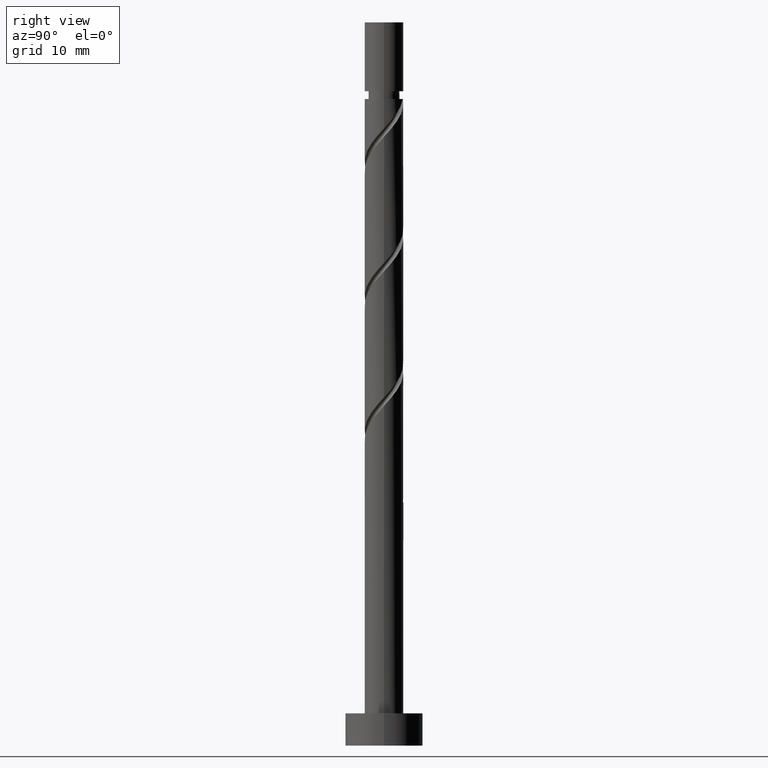
[diagram: clean part render]
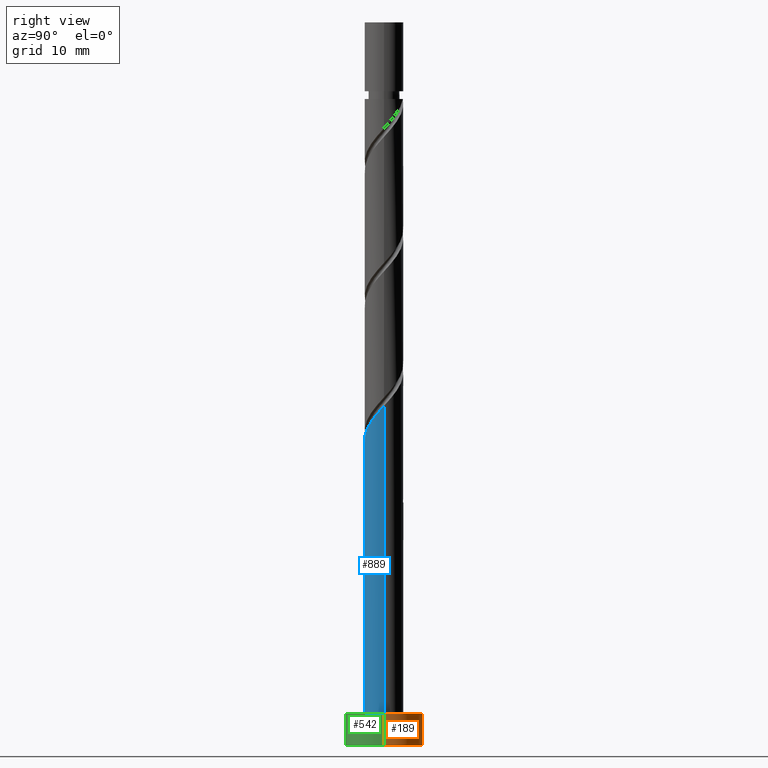
[diagram: same view with three faces highlighted in distinct colors, each labeled with its STEP entity id]
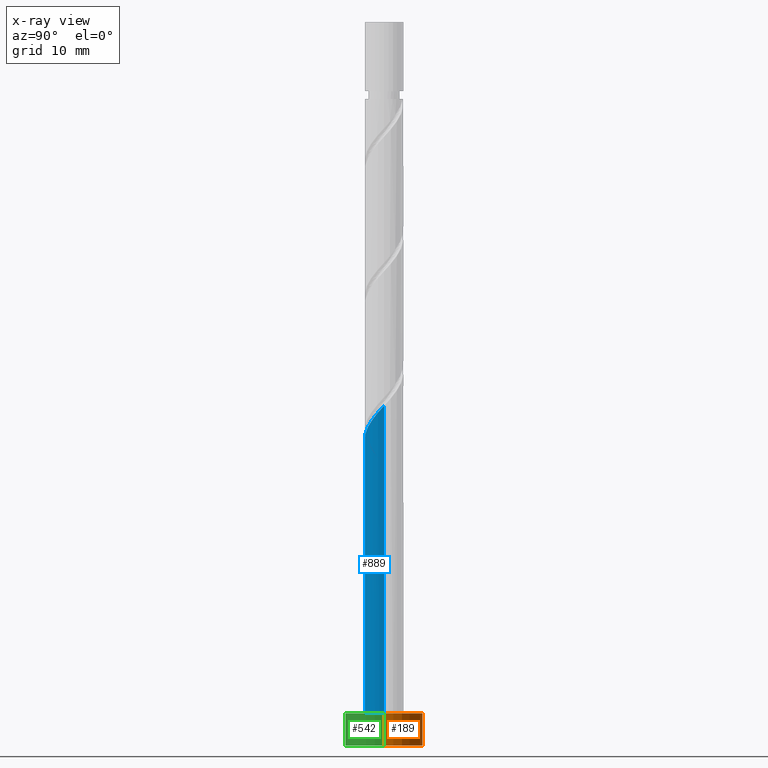
[diagram: x-ray of the same camera — body ghosted, the three highlighted faces saturated]
A machine part, right view with three faces highlighted in distinct colors.
The next image is the same camera in x-ray (body ghosted, the three faces saturated) — at least one of them is partly hidden behind the body in this view.
Their STEP definitions:

[orange] entity #189 — the highlighted cylindrical surface (partial cylindrical patch) has radius 6 mm, axis along (-0, -0, -1).
#1 = ORIENTED_EDGE ( 'NONE', *, *, #1393, .T. ) ;
#32 = VERTEX_POINT ( 'NONE', #454 ) ;
#46 = ORIENTED_EDGE ( 'NONE', *, *, #1439, .T. ) ;
#57 = ORIENTED_EDGE ( 'NONE', *, *, #138, .F. ) ;
#138 = EDGE_CURVE ( 'NONE', #298, #1461, #336, .T. ) ;
#189 = ADVANCED_FACE ( 'NONE', ( #222 ), #1161, .T. ) ;
#222 = FACE_OUTER_BOUND ( 'NONE', #672, .T. ) ;
#281 = AXIS2_PLACEMENT_3D ( 'NONE', #1183, #569, #560 ) ;
#298 = VERTEX_POINT ( 'NONE', #687 ) ;
#306 = VECTOR ( 'NONE', #623, 1000.000000000000000 ) ;
#336 = LINE ( 'NONE', #943, #1539 ) ;
#338 = ORIENTED_EDGE ( 'NONE', *, *, #1012, .F. ) ;
#409 = VERTEX_POINT ( 'NONE', #605 ) ;
#434 = CARTESIAN_POINT ( 'NONE',  ( 0.000000000000000000, 0.000000000000000000, 5.000000000000000000 ) ) ;
#454 = CARTESIAN_POINT ( 'NONE',  ( 6.000000000000000888, 7.347880794884120722E-16, 0.000000000000000000 ) ) ;
#502 = LINE ( 'NONE', #1118, #306 ) ;
#560 = DIRECTION ( 'NONE',  ( 1.000000000000000000, 0.000000000000000000, 0.000000000000000000 ) ) ;
#569 = DIRECTION ( 'NONE',  ( 0.000000000000000000, 0.000000000000000000, 1.000000000000000000 ) ) ;
#605 = CARTESIAN_POINT ( 'NONE',  ( 6.000000000000000888, 7.347880794884120722E-16, 5.000000000000000000 ) ) ;
#623 = DIRECTION ( 'NONE',  ( -0.000000000000000000, -0.000000000000000000, -1.000000000000000000 ) ) ;
#672 = EDGE_LOOP ( 'NONE', ( #338, #46, #1, #57 ) ) ;
#687 = CARTESIAN_POINT ( 'NONE',  ( -6.000000000000000888, 0.000000000000000000, 5.000000000000000000 ) ) ;
#724 = DIRECTION ( 'NONE',  ( 0.000000000000000000, 0.000000000000000000, 1.000000000000000000 ) ) ;
#918 = DIRECTION ( 'NONE',  ( -0.000000000000000000, -0.000000000000000000, -1.000000000000000000 ) ) ;
#943 = CARTESIAN_POINT ( 'NONE',  ( -6.000000000000000888, 0.000000000000000000, 5.000000000000000000 ) ) ;
#995 = DIRECTION ( 'NONE',  ( 1.000000000000000000, 0.000000000000000000, 0.000000000000000000 ) ) ;
#1012 = EDGE_CURVE ( 'NONE', #409, #298, #1313, .T. ) ;
#1111 = CARTESIAN_POINT ( 'NONE',  ( 0.000000000000000000, 0.000000000000000000, 0.000000000000000000 ) ) ;
#1118 = CARTESIAN_POINT ( 'NONE',  ( 6.000000000000000888, 7.347880794884120722E-16, 5.000000000000000000 ) ) ;
#1161 = CYLINDRICAL_SURFACE ( 'NONE', #1177, 6.000000000000000888 ) ;
#1177 = AXIS2_PLACEMENT_3D ( 'NONE', #434, #918, #1428 ) ;
#1183 = CARTESIAN_POINT ( 'NONE',  ( 0.000000000000000000, 0.000000000000000000, 5.000000000000000000 ) ) ;
#1240 = CIRCLE ( 'NONE', #1438, 6.000000000000000888 ) ;
#1313 = CIRCLE ( 'NONE', #281, 6.000000000000000888 ) ;
#1393 = EDGE_CURVE ( 'NONE', #32, #1461, #1240, .T. ) ;
#1428 = DIRECTION ( 'NONE',  ( -1.000000000000000000, 0.000000000000000000, 0.000000000000000000 ) ) ;
#1438 = AXIS2_PLACEMENT_3D ( 'NONE', #1111, #724, #995 ) ;
#1439 = EDGE_CURVE ( 'NONE', #409, #32, #502, .T. ) ;
#1445 = DIRECTION ( 'NONE',  ( -0.000000000000000000, -0.000000000000000000, -1.000000000000000000 ) ) ;
#1461 = VERTEX_POINT ( 'NONE', #1484 ) ;
#1484 = CARTESIAN_POINT ( 'NONE',  ( -6.000000000000000888, 0.000000000000000000, 0.000000000000000000 ) ) ;
#1539 = VECTOR ( 'NONE', #1445, 1000.000000000000000 ) ;

[blue] entity #889 — the highlighted cylindrical surface (edge-blend (fillet) strip) has radius 3 mm, axis along (-0, -0, -1).
#39 = VERTEX_POINT ( 'NONE', #1192 ) ;
#41 =( BOUNDED_CURVE ( )  B_SPLINE_CURVE ( 2, ( #594, #1363, #508, #730, #637, #1221, #1110, #748, #1241, #1519, #904, #760, #1152, #531, #163, #1013, #1006, #1396, #1383, #781, #1140, #399, #541 ),
 .UNSPECIFIED., .F., .T. ) 
 B_SPLINE_CURVE_WITH_KNOTS ( ( 3, 2, 2, 2, 2, 2, 2, 2, 2, 2, 2, 3 ),
 ( 0.05453220231385524225, 0.06250000000000000000, 0.07499999999999995559, 0.08750000000000002220, 0.09999999999999997780, 0.1125000000000000444, 0.1250000000000000000, 0.1374999999999999556, 0.1500000000000000222, 0.1624999999999999778, 0.1750000000000000444, 0.1795322023138552214 ),
 .UNSPECIFIED. ) 
 CURVE ( )  GEOMETRIC_REPRESENTATION_ITEM ( )  RATIONAL_B_SPLINE_CURVE ( ( 0.9039174447099386223, 0.9019565955404678093, 0.9090909090909161661, 0.8978984914501322301, 0.9090909090909161661, 0.8978984914501322301, 0.9090909090909161661, 0.8978984914501322301, 0.9090909090909161661, 0.8978984914501322301, 0.9090909090909161661, 0.8978984914501322301, 0.9090909090909161661, 0.8978984914501322301, 0.9090909090909161661, 0.8978984914501322301, 0.9090909090909161661, 0.8978984914501322301, 0.9090909090909161661, 0.8978984914501322301, 0.9090909090909161661, 0.9050328050005804759, 0.9039174447099382892 ) ) 
 REPRESENTATION_ITEM ( '' )  );
#61 = AXIS2_PLACEMENT_3D ( 'NONE', #651, #974, #1136 ) ;
#105 = DIRECTION ( 'NONE',  ( -0.000000000000000000, -0.000000000000000000, -1.000000000000000000 ) ) ;
#163 = CARTESIAN_POINT ( 'NONE',  ( 1.476283534877584902, -2.611625341554446145, 49.10233916454514258 ) ) ;
#188 = FACE_OUTER_BOUND ( 'NONE', #1333, .T. ) ;
#230 = CYLINDRICAL_SURFACE ( 'NONE', #1156, 3.000000000000000444 ) ;
#241 = LINE ( 'NONE', #977, #492 ) ;
#254 = VERTEX_POINT ( 'NONE', #806 ) ;
#370 = DIRECTION ( 'NONE',  ( -0.000000000000000000, -0.000000000000000000, -1.000000000000000000 ) ) ;
#379 = EDGE_CURVE ( 'NONE', #254, #1340, #241, .T. ) ;
#399 = CARTESIAN_POINT ( 'NONE',  ( 3.000000000000005773, -0.1709212123393008820, 52.41469230053426287 ) ) ;
#427 = ORIENTED_EDGE ( 'NONE', *, *, #597, .T. ) ;
#490 = CARTESIAN_POINT ( 'NONE',  ( 0.000000000000000000, 0.000000000000000000, 112.0000000000000000 ) ) ;
#492 = VECTOR ( 'NONE', #105, 1000.000000000000000 ) ;
#508 = CARTESIAN_POINT ( 'NONE',  ( -2.940000000000005720, -0.5969924622639707357, 42.85233916454514258 ) ) ;
#531 = CARTESIAN_POINT ( 'NONE',  ( 1.062642716818108068, -2.845445682986359248, 48.58150583121180688 ) ) ;
#541 = CARTESIAN_POINT ( 'NONE',  ( 3.000000000000005329, 6.896827280274645464E-16, 52.60420338974154220 ) ) ;
#570 = VECTOR ( 'NONE', #370, 1000.000000000000000 ) ;
#594 = CARTESIAN_POINT ( 'NONE',  ( -3.000000000000005329, -1.079503400390813987E-15, 42.18753672307487790 ) ) ;
#595 = CIRCLE ( 'NONE', #61, 3.000000000000000444 ) ;
#597 = EDGE_CURVE ( 'NONE', #849, #39, #1492, .T. ) ;
#631 = CARTESIAN_POINT ( 'NONE',  ( -3.000000000000000444, 0.000000000000000000, 112.0000000000000000 ) ) ;
#637 = CARTESIAN_POINT ( 'NONE',  ( -2.611625341554446145, -1.476283534877585346, 43.89400583121179267 ) ) ;
#645 = CARTESIAN_POINT ( 'NONE',  ( -3.000000000000005329, -1.079503400390813987E-15, 42.18753672307487790 ) ) ;
#651 = CARTESIAN_POINT ( 'NONE',  ( 0.000000000000000000, 0.000000000000000000, 5.000000000000000000 ) ) ;
#679 = ORIENTED_EDGE ( 'NONE', *, *, #379, .F. ) ;
#730 = CARTESIAN_POINT ( 'NONE',  ( -2.845445682986359248, -1.062642716818108291, 43.37317249787847118 ) ) ;
#748 = CARTESIAN_POINT ( 'NONE',  ( -1.677408196705102883, -2.532207025513280474, 45.45650583121181398 ) ) ;
#760 = CARTESIAN_POINT ( 'NONE',  ( 0.1313422077098330143, -3.034554317013650859, 47.53983916454512837 ) ) ;
#781 = CARTESIAN_POINT ( 'NONE',  ( 2.926619631508484698, -0.8128149918040517008, 51.70650583121178556 ) ) ;
#806 = CARTESIAN_POINT ( 'NONE',  ( 3.000000000000005329, 6.896827280274645464E-16, 52.60420338974154220 ) ) ;
#849 = VERTEX_POINT ( 'NONE', #645 ) ;
#866 = ORIENTED_EDGE ( 'NONE', *, *, #1160, .T. ) ;
#889 = ADVANCED_FACE ( 'NONE', ( #188 ), #230, .T. ) ;
#891 = ORIENTED_EDGE ( 'NONE', *, *, #1094, .F. ) ;
#904 = CARTESIAN_POINT ( 'NONE',  ( -0.3407363920471090935, -2.980586974261068445, 47.01900583121179977 ) ) ;
#962 = CARTESIAN_POINT ( 'NONE',  ( 3.000000000000000444, 3.673940397442060361E-16, 5.000000000000000000 ) ) ;
#974 = DIRECTION ( 'NONE',  ( 0.000000000000000000, 0.000000000000000000, 1.000000000000000000 ) ) ;
#977 = CARTESIAN_POINT ( 'NONE',  ( 3.000000000000000444, 3.673940397442060361E-16, 112.0000000000000000 ) ) ;
#984 = DIRECTION ( 'NONE',  ( -1.000000000000000000, 0.000000000000000000, 0.000000000000000000 ) ) ;
#1006 = CARTESIAN_POINT ( 'NONE',  ( 2.211065689225170772, -2.027606598413817185, 50.14400583121179977 ) ) ;
#1013 = CARTESIAN_POINT ( 'NONE',  ( 1.889924352937061292, -2.377805000122530821, 49.62317249787847118 ) ) ;
#1094 = EDGE_CURVE ( 'NONE', #849, #254, #41, .T. ) ;
#1108 = DIRECTION ( 'NONE',  ( -0.000000000000000000, -0.000000000000000000, -1.000000000000000000 ) ) ;
#1110 = CARTESIAN_POINT ( 'NONE',  ( -2.027606598413817185, -2.211065689225170772, 44.93567249787847118 ) ) ;
#1136 = DIRECTION ( 'NONE',  ( 1.000000000000000000, 0.000000000000000000, 0.000000000000000000 ) ) ;
#1140 = CARTESIAN_POINT ( 'NONE',  ( 2.980586974261068445, -0.3407363920471092600, 52.22733916454514258 ) ) ;
#1152 = CARTESIAN_POINT ( 'NONE',  ( 0.5969924622639705136, -2.940000000000005720, 48.06067249787845697 ) ) ;
#1156 = AXIS2_PLACEMENT_3D ( 'NONE', #490, #1108, #984 ) ;
#1160 = EDGE_CURVE ( 'NONE', #39, #1340, #595, .T. ) ;
#1192 = CARTESIAN_POINT ( 'NONE',  ( -3.000000000000000444, 0.000000000000000000, 5.000000000000000000 ) ) ;
#1221 = CARTESIAN_POINT ( 'NONE',  ( -2.377805000122530821, -1.889924352937061736, 44.41483916454514969 ) ) ;
#1241 = CARTESIAN_POINT ( 'NONE',  ( -1.245111594254577403, -2.729413328510882142, 45.97733916454512837 ) ) ;
#1333 = EDGE_LOOP ( 'NONE', ( #679, #891, #427, #866 ) ) ;
#1340 = VERTEX_POINT ( 'NONE', #962 ) ;
#1363 = CARTESIAN_POINT ( 'NONE',  ( -3.000000000000005329, -0.3015113445777633516, 42.52184129848271965 ) ) ;
#1383 = CARTESIAN_POINT ( 'NONE',  ( 2.729413328510882142, -1.245111594254577403, 51.18567249787846407 ) ) ;
#1396 = CARTESIAN_POINT ( 'NONE',  ( 2.532207025513280474, -1.677408196705102883, 50.66483916454514258 ) ) ;
#1492 = LINE ( 'NONE', #631, #570 ) ;
#1519 = CARTESIAN_POINT ( 'NONE',  ( -0.8128149918040517008, -2.926619631508484698, 46.49817249787846407 ) ) ;

[green] entity #542 — the highlighted cylindrical surface (partial cylindrical patch) has radius 6 mm, axis along (-0, -0, -1).
#5 = CARTESIAN_POINT ( 'NONE',  ( 0.000000000000000000, 0.000000000000000000, 0.000000000000000000 ) ) ;
#10 = EDGE_LOOP ( 'NONE', ( #293, #52, #1530, #456 ) ) ;
#32 = VERTEX_POINT ( 'NONE', #454 ) ;
#52 = ORIENTED_EDGE ( 'NONE', *, *, #1348, .F. ) ;
#113 = DIRECTION ( 'NONE',  ( 0.000000000000000000, 0.000000000000000000, 1.000000000000000000 ) ) ;
#131 = DIRECTION ( 'NONE',  ( 0.000000000000000000, 0.000000000000000000, 1.000000000000000000 ) ) ;
#138 = EDGE_CURVE ( 'NONE', #298, #1461, #336, .T. ) ;
#293 = ORIENTED_EDGE ( 'NONE', *, *, #1439, .F. ) ;
#298 = VERTEX_POINT ( 'NONE', #687 ) ;
#306 = VECTOR ( 'NONE', #623, 1000.000000000000000 ) ;
#335 = AXIS2_PLACEMENT_3D ( 'NONE', #511, #131, #1098 ) ;
#336 = LINE ( 'NONE', #943, #1539 ) ;
#355 = EDGE_CURVE ( 'NONE', #1461, #32, #1309, .T. ) ;
#409 = VERTEX_POINT ( 'NONE', #605 ) ;
#454 = CARTESIAN_POINT ( 'NONE',  ( 6.000000000000000888, 7.347880794884120722E-16, 0.000000000000000000 ) ) ;
#456 = ORIENTED_EDGE ( 'NONE', *, *, #355, .T. ) ;
#502 = LINE ( 'NONE', #1118, #306 ) ;
#511 = CARTESIAN_POINT ( 'NONE',  ( 0.000000000000000000, 0.000000000000000000, 5.000000000000000000 ) ) ;
#542 = ADVANCED_FACE ( 'NONE', ( #1365 ), #1485, .T. ) ;
#599 = CARTESIAN_POINT ( 'NONE',  ( 0.000000000000000000, 0.000000000000000000, 5.000000000000000000 ) ) ;
#605 = CARTESIAN_POINT ( 'NONE',  ( 6.000000000000000888, 7.347880794884120722E-16, 5.000000000000000000 ) ) ;
#623 = DIRECTION ( 'NONE',  ( -0.000000000000000000, -0.000000000000000000, -1.000000000000000000 ) ) ;
#624 = CIRCLE ( 'NONE', #335, 6.000000000000000888 ) ;
#687 = CARTESIAN_POINT ( 'NONE',  ( -6.000000000000000888, 0.000000000000000000, 5.000000000000000000 ) ) ;
#865 = DIRECTION ( 'NONE',  ( -1.000000000000000000, 0.000000000000000000, 0.000000000000000000 ) ) ;
#943 = CARTESIAN_POINT ( 'NONE',  ( -6.000000000000000888, 0.000000000000000000, 5.000000000000000000 ) ) ;
#964 = DIRECTION ( 'NONE',  ( -0.000000000000000000, -0.000000000000000000, -1.000000000000000000 ) ) ;
#1044 = AXIS2_PLACEMENT_3D ( 'NONE', #5, #113, #1476 ) ;
#1098 = DIRECTION ( 'NONE',  ( 1.000000000000000000, 0.000000000000000000, 0.000000000000000000 ) ) ;
#1118 = CARTESIAN_POINT ( 'NONE',  ( 6.000000000000000888, 7.347880794884120722E-16, 5.000000000000000000 ) ) ;
#1309 = CIRCLE ( 'NONE', #1044, 6.000000000000000888 ) ;
#1348 = EDGE_CURVE ( 'NONE', #298, #409, #624, .T. ) ;
#1365 = FACE_OUTER_BOUND ( 'NONE', #10, .T. ) ;
#1391 = AXIS2_PLACEMENT_3D ( 'NONE', #599, #964, #865 ) ;
#1439 = EDGE_CURVE ( 'NONE', #409, #32, #502, .T. ) ;
#1445 = DIRECTION ( 'NONE',  ( -0.000000000000000000, -0.000000000000000000, -1.000000000000000000 ) ) ;
#1461 = VERTEX_POINT ( 'NONE', #1484 ) ;
#1476 = DIRECTION ( 'NONE',  ( 1.000000000000000000, 0.000000000000000000, 0.000000000000000000 ) ) ;
#1484 = CARTESIAN_POINT ( 'NONE',  ( -6.000000000000000888, 0.000000000000000000, 0.000000000000000000 ) ) ;
#1485 = CYLINDRICAL_SURFACE ( 'NONE', #1391, 6.000000000000000888 ) ;
#1530 = ORIENTED_EDGE ( 'NONE', *, *, #138, .T. ) ;
#1539 = VECTOR ( 'NONE', #1445, 1000.000000000000000 ) ;